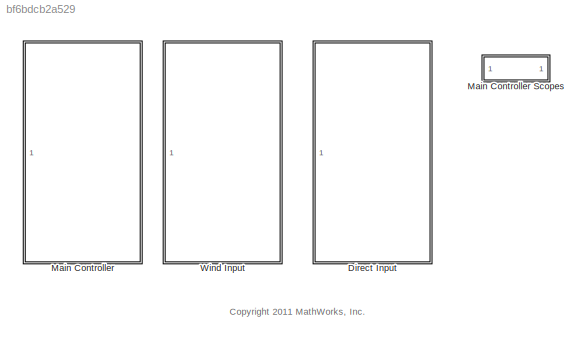
MODEL slx_bf6bdcb2a529
KIND library
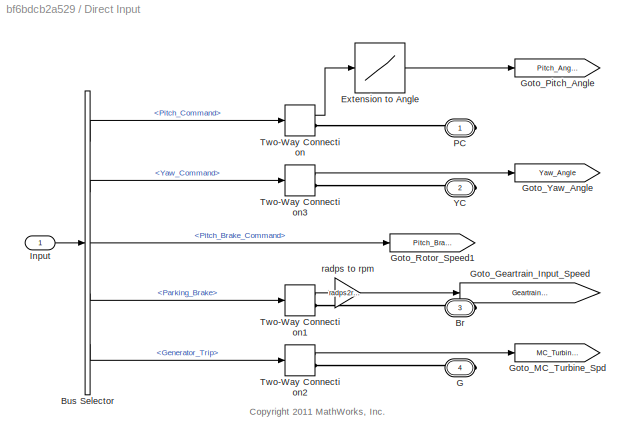
BLOCK [SubSystem] Direct Input
  FunctionWithSeparateData = off
  MaskHideContents = off
  MinAlgLoopOccurrences = off
  Opaque = off
  Ports = [1, 0, 0, 0, 0, 0, 4]
  PropExecContextOutsideSubsystem = off
  RTWSystemCode = Auto
  RequestExecContextInheritance = off
BLOCK [PMIOPort] Direct Input/Br
  Port = 3
  Side = Right
  Tag = PMCPort
BLOCK [BusSelector] Direct Input/Bus Selector
  OutputSignals = Pitch_Command,Yaw_Command,Pitch_Brake_Command,Parking_Brake,Generator_Trip
  Ports = [1, 5]
BLOCK [Lookup] Direct Input/Extension to Angle
  InputValues = Actuator_Lookup.extension
  SaturateOnIntegerOverflow = off
  Table = Actuator_Lookup.angle
BLOCK [PMIOPort] Direct Input/G
  Port = 4
  Side = Right
  Tag = PMCPort
BLOCK [Goto] Direct Input/Goto_Geartrain_Input_Speed
  GotoTag = Geartrain_Input_Speed
  TagVisibility = global
BLOCK [Goto] Direct Input/Goto_MC_Turbine_Spd
  GotoTag = MC_Turbine_Spd
  TagVisibility = global
BLOCK [Goto] Direct Input/Goto_Pitch_Angle
  GotoTag = Pitch_Angle
  TagVisibility = global
BLOCK [Goto] Direct Input/Goto_Rotor_Speed1
  GotoTag = Pitch_Brake
  TagVisibility = global
BLOCK [Goto] Direct Input/Goto_Yaw_Angle
  GotoTag = Yaw_Angle
  TagVisibility = global
BLOCK [Inport] Direct Input/Input
  IconDisplay = Port number
BLOCK [PMIOPort] Direct Input/PC
  Port = 1
  Side = Right
  Tag = PMCPort
BLOCK [TwoWayConnection] Direct Input/Two-Way Connection
  Ports = [1, 1, 0, 0, 0, 0, 1]
BLOCK [TwoWayConnection] Direct Input/Two-Way Connection1
  Ports = [1, 1, 0, 0, 0, 0, 1]
BLOCK [TwoWayConnection] Direct Input/Two-Way Connection2
  Ports = [1, 1, 0, 0, 0, 0, 1]
BLOCK [TwoWayConnection] Direct Input/Two-Way Connection3
  Ports = [1, 1, 0, 0, 0, 0, 1]
BLOCK [PMIOPort] Direct Input/YC
  Port = 2
  Side = Right
  Tag = PMCPort
BLOCK [Gain] Direct Input/radps to rpm
  Gain = radps2rpm
  OutDataTypeStr = Inherit: Inherit via internal rule
  ParamDataTypeStr = Inherit: Inherit via internal rule
  SaturateOnIntegerOverflow = off
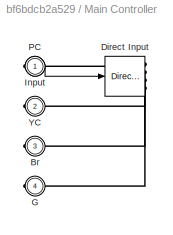
BLOCK [SubSystem] Main Controller
  BlockChoice = Direct Input
  FunctionWithSeparateData = off
  MaskHideContents = off
  MemberBlocks = Direct Input,Wind Input
  MinAlgLoopOccurrences = off
  Opaque = off
  Ports = [1, 0, 0, 0, 0, 0, 4]
  PropExecContextOutsideSubsystem = off
  RTWSystemCode = Auto
  RequestExecContextInheritance = off
  TemplateBlock = self
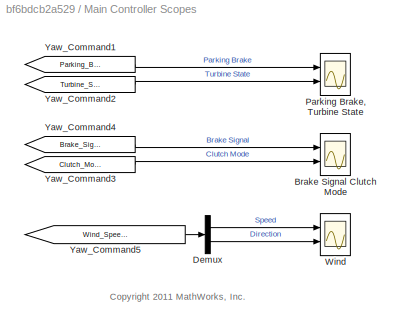
BLOCK [SubSystem] Main Controller Scopes
  FunctionWithSeparateData = off
  MaskHideContents = off
  MinAlgLoopOccurrences = off
  Opaque = off
  Ports = []
  PropExecContextOutsideSubsystem = off
  RTWSystemCode = Auto
  RequestExecContextInheritance = off
BLOCK [Scope] Main Controller Scopes/Brake Signal Clutch Mode
  DataFormat = StructureWithTime
  Floating = off
  LimitDataPoints = off
  NumInputPorts = 2
  Ports = [2]
  SampleTime = 0
  SaveName = ScopeData9
  ShowLegends = off
  TimeRange = 80
  YMax = 1~3
  YMin = -1~1
BLOCK [Demux] Main Controller Scopes/Demux
  DisplayOption = bar
  Outputs = 2
  Ports = [1, 2]
BLOCK [Scope] Main Controller Scopes/Parking Brake, Turbine State
  DataFormat = StructureWithTime
  Floating = off
  LimitDataPoints = off
  NumInputPorts = 2
  Ports = [2]
  SampleTime = 0
  SaveName = ScopeData7
  ShowLegends = off
  TimeRange = 80
  YMax = 1~3
  YMin = 0~0
BLOCK [Scope] Main Controller Scopes/Wind
  DataFormat = StructureWithTime
  Floating = off
  LimitDataPoints = off
  NumInputPorts = 2
  Ports = [2]
  SampleTime = 0
  SaveName = Wind_Turbine_Wind_DATA
  SaveToWorkspace = on
  ShowLegends = off
  TimeRange = 80
  YMax = 20~5
  YMin = 0~-5
BLOCK [From] Main Controller Scopes/Yaw_Command1
  CloseFcn = tagdialog Close
  GotoTag = Parking_Brake
BLOCK [From] Main Controller Scopes/Yaw_Command2
  CloseFcn = tagdialog Close
  GotoTag = Turbine_State
BLOCK [From] Main Controller Scopes/Yaw_Command3
  CloseFcn = tagdialog Close
  GotoTag = Clutch_Mode
BLOCK [From] Main Controller Scopes/Yaw_Command4
  CloseFcn = tagdialog Close
  GotoTag = Brake_Signal
BLOCK [From] Main Controller Scopes/Yaw_Command5
  CloseFcn = tagdialog Close
  GotoTag = Wind_Speed_Direction
BLOCK [PMIOPort] Main Controller/Br
  Port = 3
  Side = Right
BLOCK [Reference] Main Controller/Direct Input  REF=Main_Controller_Lib/Direct Input
  FunctionWithSeparateData = off
  GeneratePreprocessorConditionals = off
  Ports = [1, 0, 0, 0, 0, 0, 4]
  ShowPortLabels = FromPortIcon
  SourceBlock = Main_Controller_Lib/Direct Input
  SystemSampleTime = -1
BLOCK [PMIOPort] Main Controller/G
  Port = 4
  Side = Right
BLOCK [Inport] Main Controller/Input
  IconDisplay = Port number
BLOCK [PMIOPort] Main Controller/PC
  Port = 1
  Side = Right
BLOCK [PMIOPort] Main Controller/YC
  Port = 2
  Side = Right
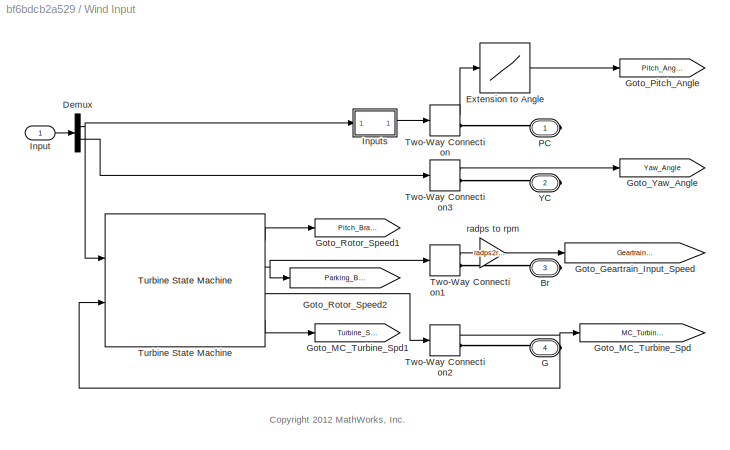
BLOCK [SubSystem] Wind Input
  FunctionWithSeparateData = off
  MaskHideContents = off
  MinAlgLoopOccurrences = off
  Opaque = off
  Ports = [1, 0, 0, 0, 0, 0, 4]
  PropExecContextOutsideSubsystem = off
  RTWSystemCode = Auto
  RequestExecContextInheritance = off
BLOCK [PMIOPort] Wind Input/Br
  Port = 3
  Side = Right
  Tag = PMCPort
BLOCK [Demux] Wind Input/Demux
  DisplayOption = bar
  Outputs = 2
  Ports = [1, 2]
BLOCK [Lookup] Wind Input/Extension to Angle
  InputValues = Actuator_Lookup.extension
  SaturateOnIntegerOverflow = off
  Table = Actuator_Lookup.angle
BLOCK [PMIOPort] Wind Input/G
  Port = 4
  Side = Right
  Tag = PMCPort
BLOCK [Goto] Wind Input/Goto_Geartrain_Input_Speed
  GotoTag = Geartrain_Input_Speed
  TagVisibility = global
BLOCK [Goto] Wind Input/Goto_MC_Turbine_Spd
  GotoTag = MC_Turbine_Spd
  TagVisibility = global
BLOCK [Goto] Wind Input/Goto_MC_Turbine_Spd1
  GotoTag = Turbine_State
  TagVisibility = global
BLOCK [Goto] Wind Input/Goto_Pitch_Angle
  GotoTag = Pitch_Angle
  TagVisibility = global
BLOCK [Goto] Wind Input/Goto_Rotor_Speed1
  GotoTag = Pitch_Brake
  TagVisibility = global
BLOCK [Goto] Wind Input/Goto_Rotor_Speed2
  GotoTag = Parking_Brake
  TagVisibility = global
BLOCK [Goto] Wind Input/Goto_Yaw_Angle
  GotoTag = Yaw_Angle
  TagVisibility = global
BLOCK [Inport] Wind Input/Input
  IconDisplay = Port number
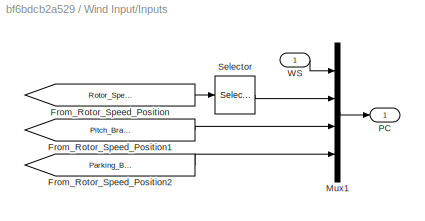
BLOCK [SubSystem] Wind Input/Inputs
  FunctionWithSeparateData = off
  MaskHideContents = off
  MinAlgLoopOccurrences = off
  Opaque = off
  Ports = [1, 1]
  PropExecContextOutsideSubsystem = off
  RTWSystemCode = Auto
  RequestExecContextInheritance = off
BLOCK [From] Wind Input/Inputs/From_Rotor_Speed_Position
  CloseFcn = tagdialog Close
  GotoTag = Rotor_Speed_Position
  TagVisibility = global
BLOCK [From] Wind Input/Inputs/From_Rotor_Speed_Position1
  CloseFcn = tagdialog Close
  GotoTag = Pitch_Brake
  TagVisibility = global
BLOCK [From] Wind Input/Inputs/From_Rotor_Speed_Position2
  CloseFcn = tagdialog Close
  GotoTag = Parking_Brake
  TagVisibility = global
BLOCK [Mux] Wind Input/Inputs/Mux1
  DisplayOption = bar
  Ports = [4, 1]
BLOCK [Outport] Wind Input/Inputs/PC
  IconDisplay = Port number
BLOCK [Selector] Wind Input/Inputs/Selector
  IndexOptions = Index vector (dialog)
  Indices = [2]
  InputPortWidth = 2
  OutputSizes = 1
  Ports = [1, 1]
BLOCK [Inport] Wind Input/Inputs/WS
  IconDisplay = Port number
BLOCK [PMIOPort] Wind Input/PC
  Port = 1
  Side = Right
  Tag = PMCPort
BLOCK [Reference] Wind Input/Turbine State Machine  REF=Turbine_State_Machine_Lib/Turbine State Machine
  Ports = [2, 4]
  SourceBlock = Turbine_State_Machine_Lib/Turbine State Machine
  SourceType = Stateflow
BLOCK [TwoWayConnection] Wind Input/Two-Way Connection
  Ports = [1, 1, 0, 0, 0, 0, 1]
BLOCK [TwoWayConnection] Wind Input/Two-Way Connection1
  Ports = [1, 1, 0, 0, 0, 0, 1]
BLOCK [TwoWayConnection] Wind Input/Two-Way Connection2
  Ports = [1, 1, 0, 0, 0, 0, 1]
BLOCK [TwoWayConnection] Wind Input/Two-Way Connection3
  Ports = [1, 1, 0, 0, 0, 0, 1]
BLOCK [PMIOPort] Wind Input/YC
  Port = 2
  Side = Right
  Tag = PMCPort
BLOCK [Gain] Wind Input/radps to rpm
  Gain = radps2rpm
  OutDataTypeStr = Inherit: Inherit via internal rule
  ParamDataTypeStr = Inherit: Inherit via internal rule
  SaturateOnIntegerOverflow = off
ANNOTATION (root): <copyright redacted>
ANNOTATION Direct Input: <copyright redacted>
ANNOTATION Main Controller Scopes: <copyright redacted>
ANNOTATION Wind Input: <copyright redacted>
LINE Direct Input/Bus Selector:1 -> Direct Input/Two-Way Connection:1
LINE Direct Input/Bus Selector:2 -> Direct Input/Two-Way Connection3:1
LINE Direct Input/Bus Selector:3 -> Direct Input/Goto_Rotor_Speed1:1
LINE Direct Input/Bus Selector:4 -> Direct Input/Two-Way Connection1:1
LINE Direct Input/Bus Selector:5 -> Direct Input/Two-Way Connection2:1
LINE Direct Input/Extension to Angle:1 -> Direct Input/Goto_Pitch_Angle:1
LINE Direct Input/Input:1 -> Direct Input/Bus Selector:1
LINE Direct Input/Two-Way Connection1:1 -> Direct Input/radps to rpm:1
LINE Direct Input/Two-Way Connection2:1 -> Direct Input/Goto_MC_Turbine_Spd:1
LINE Direct Input/Two-Way Connection3:1 -> Direct Input/Goto_Yaw_Angle:1
LINE Direct Input/Two-Way Connection:1 -> Direct Input/Extension to Angle:1
LINE Direct Input/radps to rpm:1 -> Direct Input/Goto_Geartrain_Input_Speed:1
LINE Main Controller Scopes/Demux:1 -> Main Controller Scopes/Wind:1
LINE Main Controller Scopes/Demux:2 -> Main Controller Scopes/Wind:2
LINE Main Controller Scopes/Yaw_Command1:1 -> Main Controller Scopes/Parking Brake, Turbine State:1
LINE Main Controller Scopes/Yaw_Command2:1 -> Main Controller Scopes/Parking Brake, Turbine State:2
LINE Main Controller Scopes/Yaw_Command3:1 -> Main Controller Scopes/Brake Signal Clutch Mode:2
LINE Main Controller Scopes/Yaw_Command4:1 -> Main Controller Scopes/Brake Signal Clutch Mode:1
LINE Main Controller Scopes/Yaw_Command5:1 -> Main Controller Scopes/Demux:1
LINE Main Controller/Input:1 -> Main Controller/Direct Input:1
NET Wind Input/Demux:1 -> Wind Input/Inputs:1, Wind Input/Turbine State Machine:1
LINE Wind Input/Demux:2 -> Wind Input/Two-Way Connection3:1
LINE Wind Input/Extension to Angle:1 -> Wind Input/Goto_Pitch_Angle:1
LINE Wind Input/Input:1 -> Wind Input/Demux:1
LINE Wind Input/Inputs/From_Rotor_Speed_Position1:1 -> Wind Input/Inputs/Mux1:3
LINE Wind Input/Inputs/From_Rotor_Speed_Position2:1 -> Wind Input/Inputs/Mux1:4
LINE Wind Input/Inputs/From_Rotor_Speed_Position:1 -> Wind Input/Inputs/Selector:1
LINE Wind Input/Inputs/Mux1:1 -> Wind Input/Inputs/PC:1
LINE Wind Input/Inputs/Selector:1 -> Wind Input/Inputs/Mux1:2
LINE Wind Input/Inputs/WS:1 -> Wind Input/Inputs/Mux1:1
LINE Wind Input/Inputs:1 -> Wind Input/Two-Way Connection:1
LINE Wind Input/Turbine State Machine:1 -> Wind Input/Goto_Rotor_Speed1:1
NET Wind Input/Turbine State Machine:2 -> Wind Input/Goto_Rotor_Speed2:1, Wind Input/Two-Way Connection1:1
LINE Wind Input/Turbine State Machine:3 -> Wind Input/Two-Way Connection2:1
LINE Wind Input/Turbine State Machine:4 -> Wind Input/Goto_MC_Turbine_Spd1:1
LINE Wind Input/Two-Way Connection1:1 -> Wind Input/radps to rpm:1
NET Wind Input/Two-Way Connection2:1 -> Wind Input/Goto_MC_Turbine_Spd:1, Wind Input/Turbine State Machine:2
LINE Wind Input/Two-Way Connection3:1 -> Wind Input/Goto_Yaw_Angle:1
LINE Wind Input/Two-Way Connection:1 -> Wind Input/Extension to Angle:1
LINE Wind Input/radps to rpm:1 -> Wind Input/Goto_Geartrain_Input_Speed:1
PLINE Direct Input/Br:RConn1 -- Direct Input/Two-Way Connection1:RConn1
PLINE Direct Input/G:RConn1 -- Direct Input/Two-Way Connection2:RConn1
PLINE Direct Input/PC:RConn1 -- Direct Input/Two-Way Connection:RConn1
PLINE Direct Input/Two-Way Connection3:RConn1 -- Direct Input/YC:RConn1
PLINE Main Controller/Br:RConn1 -- Main Controller/Direct Input:RConn3
PLINE Main Controller/Direct Input:RConn1 -- Main Controller/PC:RConn1
PLINE Main Controller/Direct Input:RConn2 -- Main Controller/YC:RConn1
PLINE Main Controller/Direct Input:RConn4 -- Main Controller/G:RConn1
PLINE Wind Input/Br:RConn1 -- Wind Input/Two-Way Connection1:RConn1
PLINE Wind Input/G:RConn1 -- Wind Input/Two-Way Connection2:RConn1
PLINE Wind Input/PC:RConn1 -- Wind Input/Two-Way Connection:RConn1
PLINE Wind Input/Two-Way Connection3:RConn1 -- Wind Input/YC:RConn1
note: NET lines group one-source signal fan-out (src -> all destinations, sorted); 1:1 wires keep LINE
